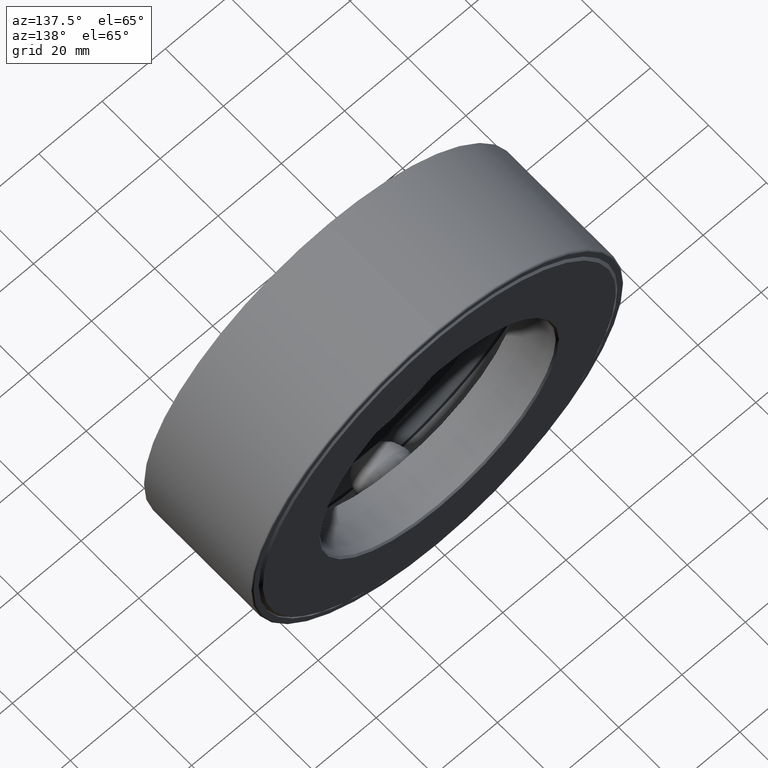
[diagram: clean part render]
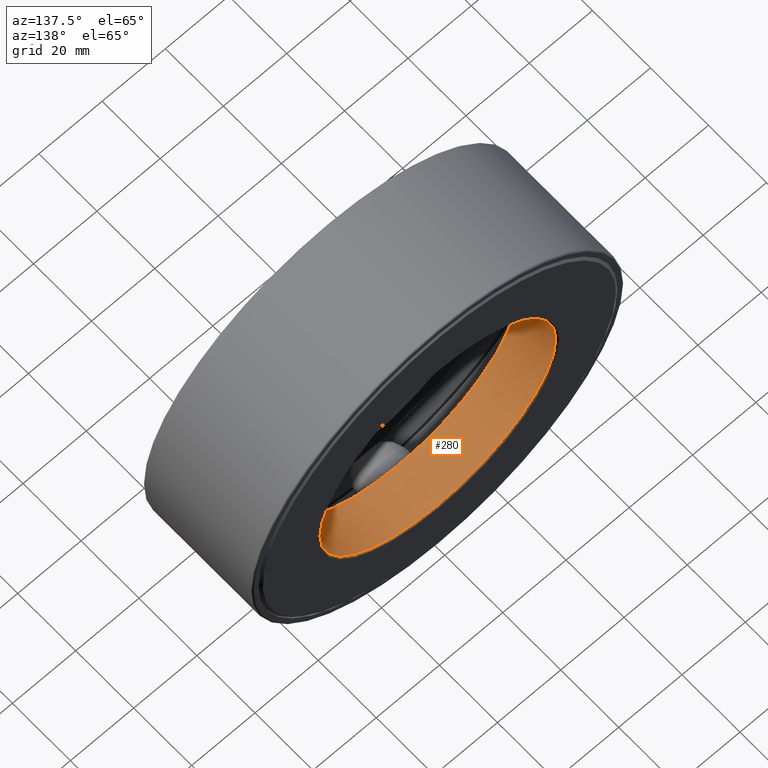
[diagram: same view with one face highlighted and labeled with its STEP entity id]
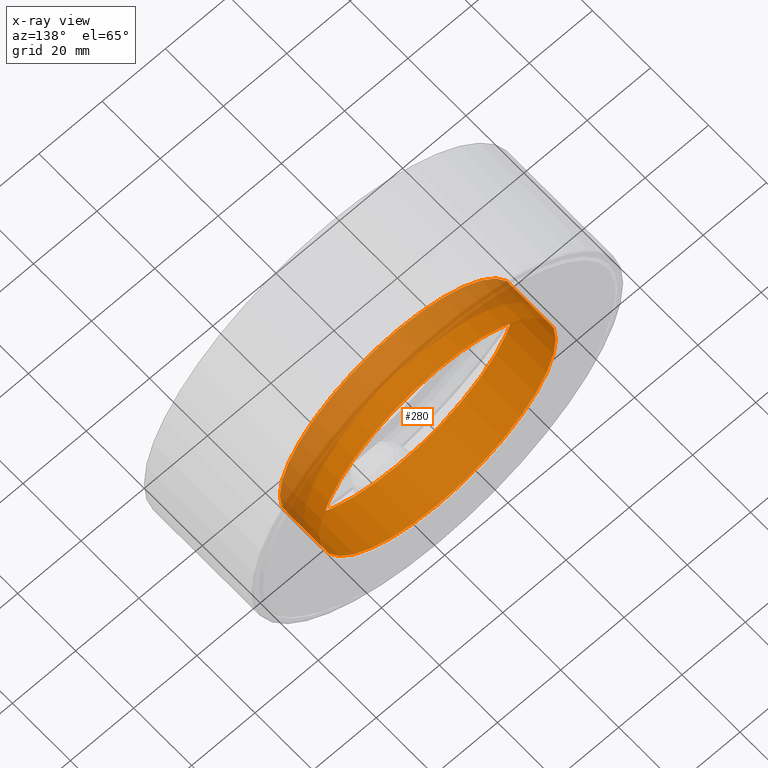
[diagram: x-ray of the same camera — body ghosted, the highlighted face saturated]
A machine part, auxiliary view. The second image highlights one B-rep face of the part: STEP entity #280.
The next image is the same camera in x-ray: the body ghosted, the highlighted face saturated — about 30% of this face is hidden behind the body in this view.
In plain terms, the highlighted cylindrical surface (bore or boss wall) has radius 37.3062 mm, axis along (-0, 1, -0).
Its self-contained STEP definition (entity closure, byte-faithful):
#5 = DIRECTION ( 'NONE',  ( -0.0000000000000000000, 1.000000000000000000, -0.0000000000000000000 ) ) ;
#15 = DIRECTION ( 'NONE',  ( -0.0000000000000000000, 1.000000000000000000, -0.0000000000000000000 ) ) ;
#21 = CARTESIAN_POINT ( 'NONE',  ( 0.0000000000000000000, 0.0000000000000000000, 0.0000000000000000000 ) ) ;
#61 = DIRECTION ( 'NONE',  ( -0.0000000000000000000, 1.000000000000000000, -0.0000000000000000000 ) ) ;
#68 = FACE_OUTER_BOUND ( 'NONE', #316, .T. ) ;
#77 = AXIS2_PLACEMENT_3D ( 'NONE', #523, #15, #297 ) ;
#98 = ORIENTED_EDGE ( 'NONE', *, *, #284, .F. ) ;
#157 = AXIS2_PLACEMENT_3D ( 'NONE', #21, #61, #295 ) ;
#168 = ORIENTED_EDGE ( 'NONE', *, *, #210, .T. ) ;
#210 = EDGE_CURVE ( 'NONE', #434, #434, #395, .T. ) ;
#242 = CARTESIAN_POINT ( 'NONE',  ( 0.0000000000000000000, 1.479999999999999800, 0.0000000000000000000 ) ) ;
#280 = ADVANCED_FACE ( 'NONE', ( #68, #282 ), #348, .F. ) ;
#282 = FACE_OUTER_BOUND ( 'NONE', #358, .T. ) ;
#284 = EDGE_CURVE ( 'NONE', #334, #334, #405, .T. ) ;
#295 = DIRECTION ( 'NONE',  ( 0.0000000000000000000, 0.0000000000000000000, 1.000000000000000000 ) ) ;
#297 = DIRECTION ( 'NONE',  ( 0.0000000000000000000, 0.0000000000000000000, 1.000000000000000000 ) ) ;
#316 = EDGE_LOOP ( 'NONE', ( #168 ) ) ;
#334 = VERTEX_POINT ( 'NONE', #506 ) ;
#348 = CYLINDRICAL_SURFACE ( 'NONE', #157, 1.468750000000000000 ) ;
#353 = AXIS2_PLACEMENT_3D ( 'NONE', #242, #5, #517 ) ;
#358 = EDGE_LOOP ( 'NONE', ( #98 ) ) ;
#395 = CIRCLE ( 'NONE', #353, 1.468750000000000000 ) ;
#405 = CIRCLE ( 'NONE', #77, 1.468750000000000000 ) ;
#434 = VERTEX_POINT ( 'NONE', #452 ) ;
#452 = CARTESIAN_POINT ( 'NONE',  ( 0.0000000000000000000, 1.479999999999999800, 1.468750000000000000 ) ) ;
#506 = CARTESIAN_POINT ( 'NONE',  ( 0.0000000000000000000, 0.9375000000000000000, 1.468750000000000000 ) ) ;
#517 = DIRECTION ( 'NONE',  ( 0.0000000000000000000, 0.0000000000000000000, 1.000000000000000000 ) ) ;
#523 = CARTESIAN_POINT ( 'NONE',  ( 0.0000000000000000000, 0.9375000000000000000, 0.0000000000000000000 ) ) ;